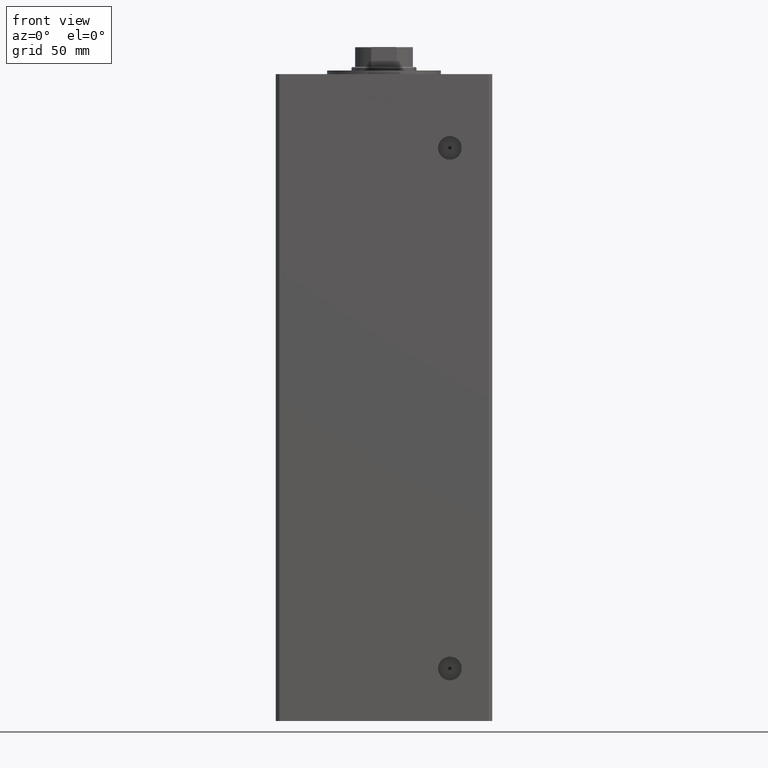
[diagram: clean part render]
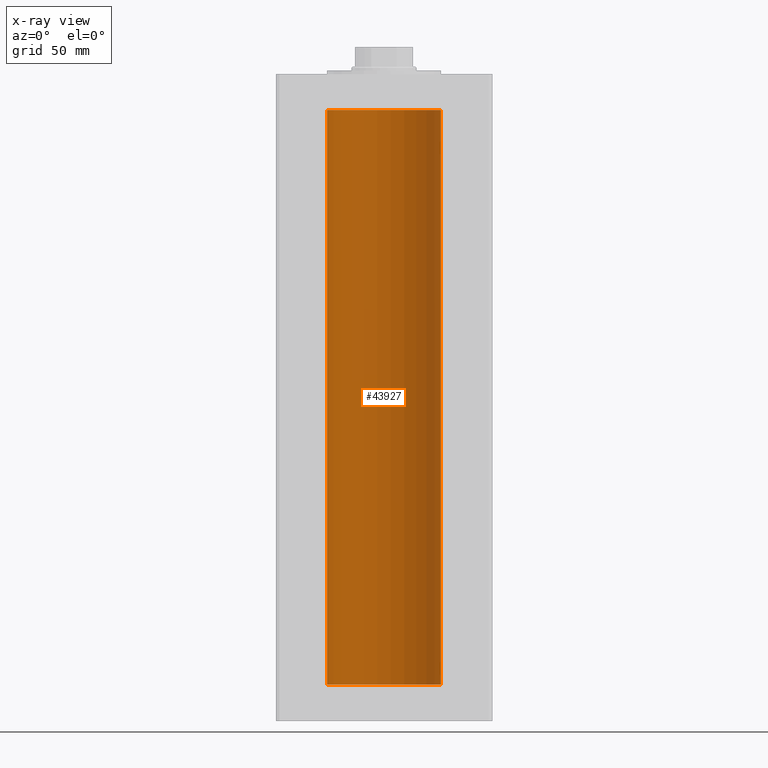
[diagram: x-ray — body ghosted, one internal face saturated and labeled with its STEP entity id]
A machine part, front view, then the same camera in x-ray: the body is ghosted and one INTERNAL B-rep face — a face not visible from any outside direction — is saturated and labeled: STEP entity #43927.
In plain terms, the highlighted cylindrical surface (partial cylindrical patch) has radius 31.5 mm, axis along (-0, -0, -1).
Its self-contained STEP definition (entity closure, byte-faithful):
#4245 = VECTOR ( 'NONE', #41541, 1000.000000000000000 ) ;
#4482 = VERTEX_POINT ( 'NONE', #12430 ) ;
#4863 = CIRCLE ( 'NONE', #41086, 31.50000000000000000 ) ;
#5381 = ORIENTED_EDGE ( 'NONE', *, *, #45577, .F. ) ;
#5418 = CARTESIAN_POINT ( 'NONE',  ( 31.50000000000000000, 3.857637417314162689E-15, 318.5000000000000000 ) ) ;
#7539 = CARTESIAN_POINT ( 'NONE',  ( -31.50000000000000000, 0.000000000000000000, 0.000000000000000000 ) ) ;
#9660 = DIRECTION ( 'NONE',  ( -1.000000000000000000, 0.000000000000000000, 0.000000000000000000 ) ) ;
#12430 = CARTESIAN_POINT ( 'NONE',  ( 31.50000000000000000, 3.857637417314162689E-15, 318.5000000000000000 ) ) ;
#12885 = LINE ( 'NONE', #36606, #34058 ) ;
#13264 = VERTEX_POINT ( 'NONE', #47338 ) ;
#13728 = EDGE_CURVE ( 'NONE', #4482, #14021, #4863, .T. ) ;
#14021 = VERTEX_POINT ( 'NONE', #48910 ) ;
#17484 = DIRECTION ( 'NONE',  ( 1.000000000000000000, 0.000000000000000000, 0.000000000000000000 ) ) ;
#17863 = DIRECTION ( 'NONE',  ( 1.000000000000000000, 0.000000000000000000, 0.000000000000000000 ) ) ;
#20780 = AXIS2_PLACEMENT_3D ( 'NONE', #30377, #45934, #17484 ) ;
#21005 = EDGE_CURVE ( 'NONE', #4482, #13264, #45495, .T. ) ;
#22312 = DIRECTION ( 'NONE',  ( -0.000000000000000000, -0.000000000000000000, -1.000000000000000000 ) ) ;
#24988 = ORIENTED_EDGE ( 'NONE', *, *, #34680, .T. ) ;
#25260 = ORIENTED_EDGE ( 'NONE', *, *, #21005, .F. ) ;
#25744 = CYLINDRICAL_SURFACE ( 'NONE', #29151, 31.50000000000000000 ) ;
#26009 = FACE_OUTER_BOUND ( 'NONE', #37473, .T. ) ;
#29151 = AXIS2_PLACEMENT_3D ( 'NONE', #42613, #22312, #9660 ) ;
#30377 = CARTESIAN_POINT ( 'NONE',  ( 0.000000000000000000, 0.000000000000000000, 0.000000000000000000 ) ) ;
#32536 = CIRCLE ( 'NONE', #20780, 31.50000000000000000 ) ;
#33175 = DIRECTION ( 'NONE',  ( -0.000000000000000000, -0.000000000000000000, -1.000000000000000000 ) ) ;
#34058 = VECTOR ( 'NONE', #33175, 1000.000000000000000 ) ;
#34680 = EDGE_CURVE ( 'NONE', #14021, #44183, #12885, .T. ) ;
#36606 = CARTESIAN_POINT ( 'NONE',  ( -31.50000000000000000, 0.000000000000000000, 318.5000000000000000 ) ) ;
#37246 = ORIENTED_EDGE ( 'NONE', *, *, #13728, .T. ) ;
#37473 = EDGE_LOOP ( 'NONE', ( #25260, #37246, #24988, #5381 ) ) ;
#41086 = AXIS2_PLACEMENT_3D ( 'NONE', #42104, #50779, #17863 ) ;
#41541 = DIRECTION ( 'NONE',  ( -0.000000000000000000, -0.000000000000000000, -1.000000000000000000 ) ) ;
#42104 = CARTESIAN_POINT ( 'NONE',  ( 0.000000000000000000, 0.000000000000000000, 318.5000000000000000 ) ) ;
#42613 = CARTESIAN_POINT ( 'NONE',  ( 0.000000000000000000, 0.000000000000000000, 318.5000000000000000 ) ) ;
#43927 = ADVANCED_FACE ( 'NONE', ( #26009 ), #25744, .F. ) ;
#44183 = VERTEX_POINT ( 'NONE', #7539 ) ;
#45495 = LINE ( 'NONE', #5418, #4245 ) ;
#45577 = EDGE_CURVE ( 'NONE', #13264, #44183, #32536, .T. ) ;
#45934 = DIRECTION ( 'NONE',  ( -0.000000000000000000, 0.000000000000000000, 1.000000000000000000 ) ) ;
#47338 = CARTESIAN_POINT ( 'NONE',  ( 31.50000000000000000, 3.857637417314162689E-15, 0.000000000000000000 ) ) ;
#48910 = CARTESIAN_POINT ( 'NONE',  ( -31.50000000000000000, 0.000000000000000000, 318.5000000000000000 ) ) ;
#50779 = DIRECTION ( 'NONE',  ( -0.000000000000000000, 0.000000000000000000, 1.000000000000000000 ) ) ;